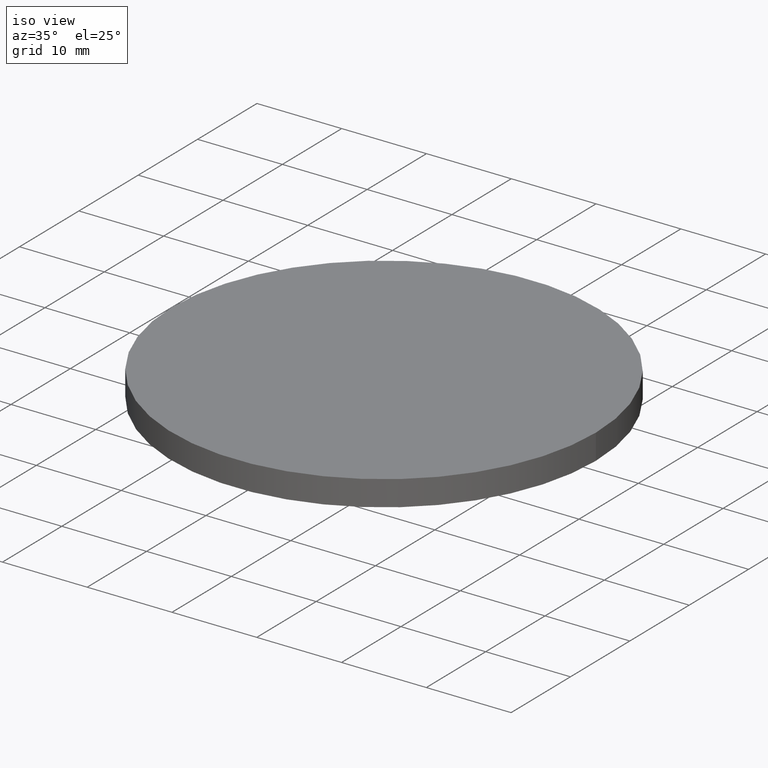
[diagram: clean part render]
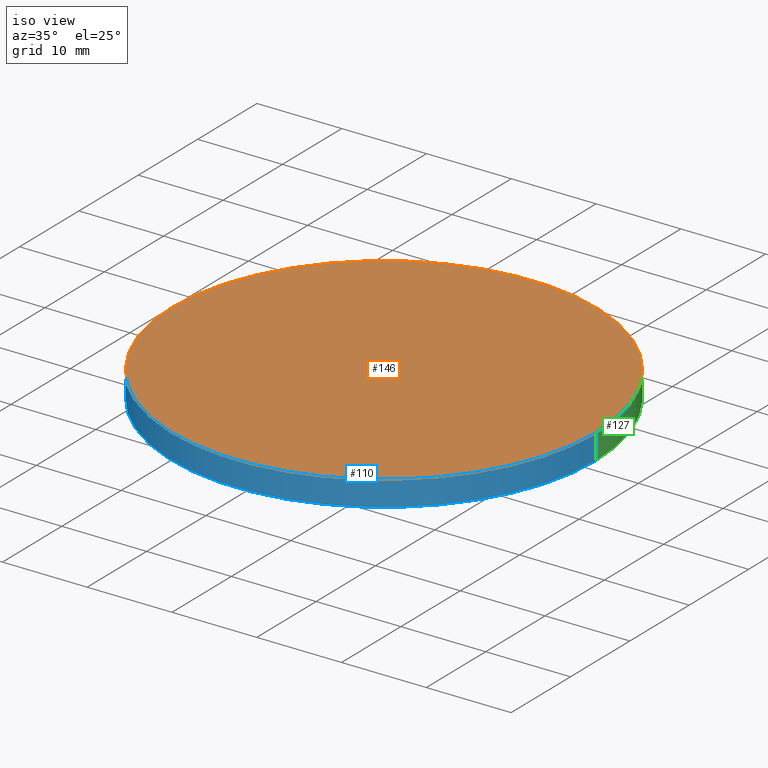
[diagram: same view with three faces highlighted in distinct colors, each labeled with its STEP entity id]
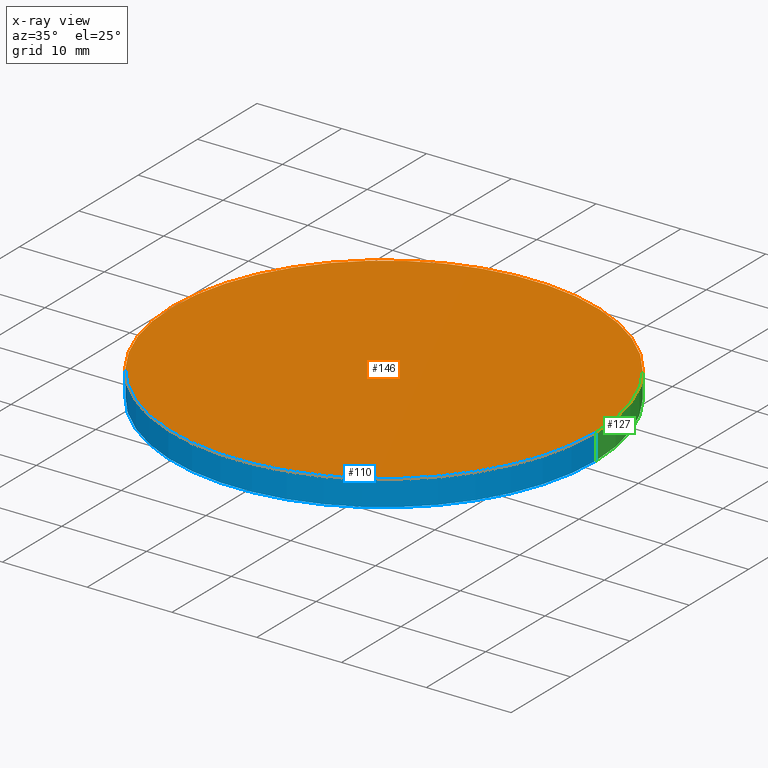
[diagram: x-ray of the same camera — body ghosted, the three highlighted faces saturated]
A machine part, iso view with three faces highlighted in distinct colors.
The next image is the same camera in x-ray (body ghosted, the three faces saturated) — at least one of them is partly hidden behind the body in this view.
Their STEP definitions:

[orange] entity #146 — the highlighted planar face has unit normal (0, 0, 1).
#1 = DIRECTION ( 'NONE',  ( 0.0000000000000000000, 0.0000000000000000000, 1.000000000000000000 ) ) ;
#7 = AXIS2_PLACEMENT_3D ( 'NONE', #96, #1, #134 ) ;
#28 = EDGE_CURVE ( 'NONE', #114, #174, #184, .T. ) ;
#31 = ORIENTED_EDGE ( 'NONE', *, *, #251, .T. ) ;
#40 = AXIS2_PLACEMENT_3D ( 'NONE', #130, #154, #92 ) ;
#49 = ORIENTED_EDGE ( 'NONE', *, *, #28, .T. ) ;
#57 = CARTESIAN_POINT ( 'NONE',  ( 25.00000000000000000, 3.061616997868383000E-015, 3.000000000000000000 ) ) ;
#73 = CARTESIAN_POINT ( 'NONE',  ( 0.0000000000000000000, 0.0000000000000000000, 3.000000000000000000 ) ) ;
#82 = FACE_OUTER_BOUND ( 'NONE', #203, .T. ) ;
#92 = DIRECTION ( 'NONE',  ( 1.000000000000000000, 0.0000000000000000000, 0.0000000000000000000 ) ) ;
#93 = PLANE ( 'NONE',  #187 ) ;
#96 = CARTESIAN_POINT ( 'NONE',  ( 0.0000000000000000000, 0.0000000000000000000, 3.000000000000000000 ) ) ;
#113 = DIRECTION ( 'NONE',  ( 0.0000000000000000000, 0.0000000000000000000, 1.000000000000000000 ) ) ;
#114 = VERTEX_POINT ( 'NONE', #57 ) ;
#130 = CARTESIAN_POINT ( 'NONE',  ( 0.0000000000000000000, 0.0000000000000000000, 3.000000000000000000 ) ) ;
#134 = DIRECTION ( 'NONE',  ( 1.000000000000000000, 0.0000000000000000000, 0.0000000000000000000 ) ) ;
#146 = ADVANCED_FACE ( 'NONE', ( #82 ), #93, .T. ) ;
#154 = DIRECTION ( 'NONE',  ( 0.0000000000000000000, 0.0000000000000000000, 1.000000000000000000 ) ) ;
#174 = VERTEX_POINT ( 'NONE', #223 ) ;
#184 = CIRCLE ( 'NONE', #40, 25.00000000000000000 ) ;
#187 = AXIS2_PLACEMENT_3D ( 'NONE', #73, #113, #199 ) ;
#199 = DIRECTION ( 'NONE',  ( 1.000000000000000000, 0.0000000000000000000, -0.0000000000000000000 ) ) ;
#203 = EDGE_LOOP ( 'NONE', ( #31, #49 ) ) ;
#223 = CARTESIAN_POINT ( 'NONE',  ( -25.00000000000000000, 0.0000000000000000000, 3.000000000000000000 ) ) ;
#247 = CIRCLE ( 'NONE', #7, 25.00000000000000000 ) ;
#251 = EDGE_CURVE ( 'NONE', #174, #114, #247, .T. ) ;

[blue] entity #110 — the highlighted cylindrical surface (partial cylindrical patch) has radius 25 mm, axis along (-0, -0, -1).
#1 = DIRECTION ( 'NONE',  ( 0.0000000000000000000, 0.0000000000000000000, 1.000000000000000000 ) ) ;
#7 = AXIS2_PLACEMENT_3D ( 'NONE', #96, #1, #134 ) ;
#9 = EDGE_CURVE ( 'NONE', #114, #68, #54, .T. ) ;
#13 = CARTESIAN_POINT ( 'NONE',  ( 25.00000000000000000, 3.061616997868383000E-015, 3.000000000000000000 ) ) ;
#14 = DIRECTION ( 'NONE',  ( -0.0000000000000000000, -0.0000000000000000000, -1.000000000000000000 ) ) ;
#17 = DIRECTION ( 'NONE',  ( 1.000000000000000000, 0.0000000000000000000, 0.0000000000000000000 ) ) ;
#23 = AXIS2_PLACEMENT_3D ( 'NONE', #198, #14, #74 ) ;
#35 = DIRECTION ( 'NONE',  ( -0.0000000000000000000, -0.0000000000000000000, -1.000000000000000000 ) ) ;
#37 = CARTESIAN_POINT ( 'NONE',  ( 25.00000000000000000, 3.061616997868383000E-015, 0.0000000000000000000 ) ) ;
#50 = CYLINDRICAL_SURFACE ( 'NONE', #23, 25.00000000000000000 ) ;
#54 = LINE ( 'NONE', #13, #91 ) ;
#57 = CARTESIAN_POINT ( 'NONE',  ( 25.00000000000000000, 3.061616997868383000E-015, 3.000000000000000000 ) ) ;
#60 = EDGE_LOOP ( 'NONE', ( #120, #145, #164, #250 ) ) ;
#68 = VERTEX_POINT ( 'NONE', #37 ) ;
#74 = DIRECTION ( 'NONE',  ( -1.000000000000000000, 0.0000000000000000000, 0.0000000000000000000 ) ) ;
#77 = EDGE_CURVE ( 'NONE', #157, #68, #213, .T. ) ;
#91 = VECTOR ( 'NONE', #175, 1000.000000000000000 ) ;
#95 = CARTESIAN_POINT ( 'NONE',  ( -25.00000000000000000, 0.0000000000000000000, 0.0000000000000000000 ) ) ;
#96 = CARTESIAN_POINT ( 'NONE',  ( 0.0000000000000000000, 0.0000000000000000000, 3.000000000000000000 ) ) ;
#106 = LINE ( 'NONE', #219, #107 ) ;
#107 = VECTOR ( 'NONE', #35, 1000.000000000000000 ) ;
#110 = ADVANCED_FACE ( 'NONE', ( #252 ), #50, .T. ) ;
#114 = VERTEX_POINT ( 'NONE', #57 ) ;
#120 = ORIENTED_EDGE ( 'NONE', *, *, #9, .F. ) ;
#134 = DIRECTION ( 'NONE',  ( 1.000000000000000000, 0.0000000000000000000, 0.0000000000000000000 ) ) ;
#140 = EDGE_CURVE ( 'NONE', #174, #157, #106, .T. ) ;
#145 = ORIENTED_EDGE ( 'NONE', *, *, #251, .F. ) ;
#147 = CARTESIAN_POINT ( 'NONE',  ( 0.0000000000000000000, 0.0000000000000000000, 0.0000000000000000000 ) ) ;
#157 = VERTEX_POINT ( 'NONE', #95 ) ;
#164 = ORIENTED_EDGE ( 'NONE', *, *, #140, .T. ) ;
#170 = AXIS2_PLACEMENT_3D ( 'NONE', #147, #177, #17 ) ;
#174 = VERTEX_POINT ( 'NONE', #223 ) ;
#175 = DIRECTION ( 'NONE',  ( -0.0000000000000000000, -0.0000000000000000000, -1.000000000000000000 ) ) ;
#177 = DIRECTION ( 'NONE',  ( 0.0000000000000000000, 0.0000000000000000000, 1.000000000000000000 ) ) ;
#198 = CARTESIAN_POINT ( 'NONE',  ( 0.0000000000000000000, 0.0000000000000000000, 3.000000000000000000 ) ) ;
#213 = CIRCLE ( 'NONE', #170, 25.00000000000000000 ) ;
#219 = CARTESIAN_POINT ( 'NONE',  ( -25.00000000000000000, 0.0000000000000000000, 3.000000000000000000 ) ) ;
#223 = CARTESIAN_POINT ( 'NONE',  ( -25.00000000000000000, 0.0000000000000000000, 3.000000000000000000 ) ) ;
#247 = CIRCLE ( 'NONE', #7, 25.00000000000000000 ) ;
#250 = ORIENTED_EDGE ( 'NONE', *, *, #77, .T. ) ;
#251 = EDGE_CURVE ( 'NONE', #174, #114, #247, .T. ) ;
#252 = FACE_OUTER_BOUND ( 'NONE', #60, .T. ) ;

[green] entity #127 — the highlighted cylindrical surface (partial cylindrical patch) has radius 25 mm, axis along (-0, -0, -1).
#3 = ORIENTED_EDGE ( 'NONE', *, *, #140, .F. ) ;
#9 = EDGE_CURVE ( 'NONE', #114, #68, #54, .T. ) ;
#11 = ORIENTED_EDGE ( 'NONE', *, *, #28, .F. ) ;
#13 = CARTESIAN_POINT ( 'NONE',  ( 25.00000000000000000, 3.061616997868383000E-015, 3.000000000000000000 ) ) ;
#28 = EDGE_CURVE ( 'NONE', #114, #174, #184, .T. ) ;
#35 = DIRECTION ( 'NONE',  ( -0.0000000000000000000, -0.0000000000000000000, -1.000000000000000000 ) ) ;
#37 = CARTESIAN_POINT ( 'NONE',  ( 25.00000000000000000, 3.061616997868383000E-015, 0.0000000000000000000 ) ) ;
#40 = AXIS2_PLACEMENT_3D ( 'NONE', #130, #154, #92 ) ;
#47 = CYLINDRICAL_SURFACE ( 'NONE', #167, 25.00000000000000000 ) ;
#53 = DIRECTION ( 'NONE',  ( -0.0000000000000000000, -0.0000000000000000000, -1.000000000000000000 ) ) ;
#54 = LINE ( 'NONE', #13, #91 ) ;
#57 = CARTESIAN_POINT ( 'NONE',  ( 25.00000000000000000, 3.061616997868383000E-015, 3.000000000000000000 ) ) ;
#65 = AXIS2_PLACEMENT_3D ( 'NONE', #171, #253, #173 ) ;
#68 = VERTEX_POINT ( 'NONE', #37 ) ;
#89 = EDGE_CURVE ( 'NONE', #68, #157, #153, .T. ) ;
#91 = VECTOR ( 'NONE', #175, 1000.000000000000000 ) ;
#92 = DIRECTION ( 'NONE',  ( 1.000000000000000000, 0.0000000000000000000, 0.0000000000000000000 ) ) ;
#95 = CARTESIAN_POINT ( 'NONE',  ( -25.00000000000000000, 0.0000000000000000000, 0.0000000000000000000 ) ) ;
#100 = FACE_OUTER_BOUND ( 'NONE', #232, .T. ) ;
#104 = ORIENTED_EDGE ( 'NONE', *, *, #9, .T. ) ;
#106 = LINE ( 'NONE', #219, #107 ) ;
#107 = VECTOR ( 'NONE', #35, 1000.000000000000000 ) ;
#114 = VERTEX_POINT ( 'NONE', #57 ) ;
#127 = ADVANCED_FACE ( 'NONE', ( #100 ), #47, .T. ) ;
#129 = ORIENTED_EDGE ( 'NONE', *, *, #89, .T. ) ;
#130 = CARTESIAN_POINT ( 'NONE',  ( 0.0000000000000000000, 0.0000000000000000000, 3.000000000000000000 ) ) ;
#140 = EDGE_CURVE ( 'NONE', #174, #157, #106, .T. ) ;
#149 = CARTESIAN_POINT ( 'NONE',  ( 0.0000000000000000000, 0.0000000000000000000, 3.000000000000000000 ) ) ;
#153 = CIRCLE ( 'NONE', #65, 25.00000000000000000 ) ;
#154 = DIRECTION ( 'NONE',  ( 0.0000000000000000000, 0.0000000000000000000, 1.000000000000000000 ) ) ;
#157 = VERTEX_POINT ( 'NONE', #95 ) ;
#167 = AXIS2_PLACEMENT_3D ( 'NONE', #149, #53, #195 ) ;
#171 = CARTESIAN_POINT ( 'NONE',  ( 0.0000000000000000000, 0.0000000000000000000, 0.0000000000000000000 ) ) ;
#173 = DIRECTION ( 'NONE',  ( 1.000000000000000000, 0.0000000000000000000, 0.0000000000000000000 ) ) ;
#174 = VERTEX_POINT ( 'NONE', #223 ) ;
#175 = DIRECTION ( 'NONE',  ( -0.0000000000000000000, -0.0000000000000000000, -1.000000000000000000 ) ) ;
#184 = CIRCLE ( 'NONE', #40, 25.00000000000000000 ) ;
#195 = DIRECTION ( 'NONE',  ( -1.000000000000000000, 0.0000000000000000000, 0.0000000000000000000 ) ) ;
#219 = CARTESIAN_POINT ( 'NONE',  ( -25.00000000000000000, 0.0000000000000000000, 3.000000000000000000 ) ) ;
#223 = CARTESIAN_POINT ( 'NONE',  ( -25.00000000000000000, 0.0000000000000000000, 3.000000000000000000 ) ) ;
#232 = EDGE_LOOP ( 'NONE', ( #11, #104, #129, #3 ) ) ;
#253 = DIRECTION ( 'NONE',  ( 0.0000000000000000000, 0.0000000000000000000, 1.000000000000000000 ) ) ;